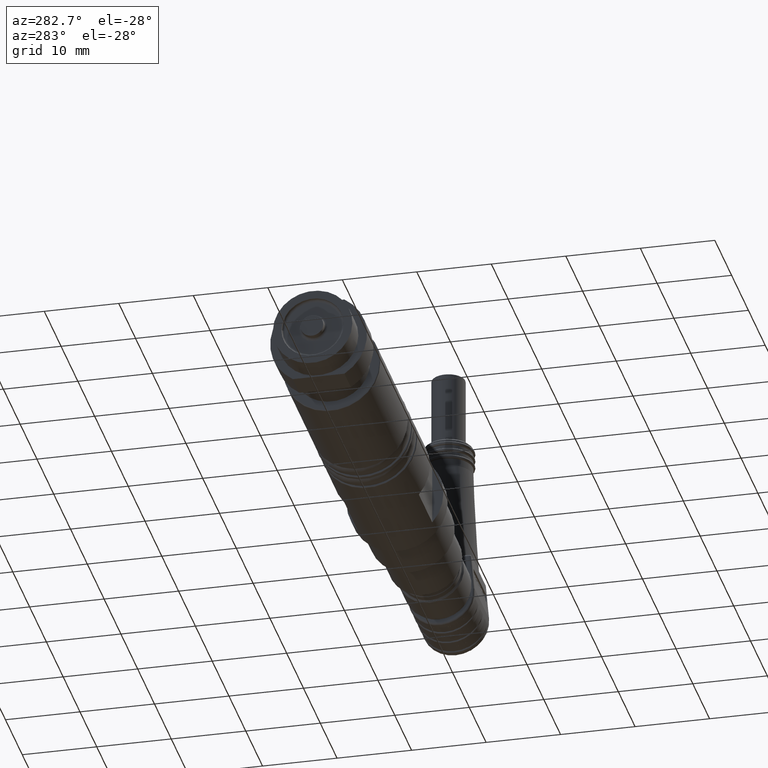
[diagram: clean part render]
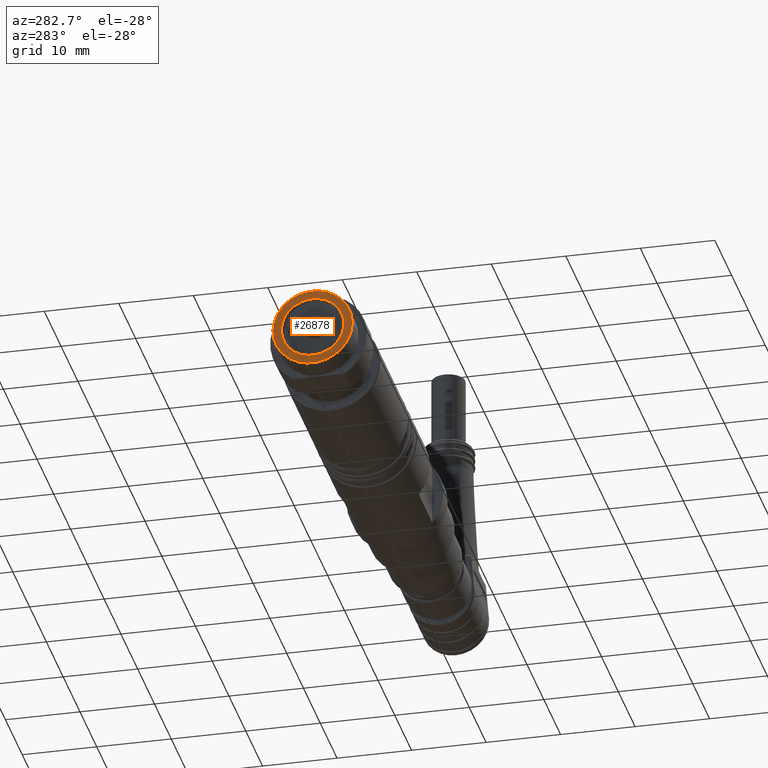
[diagram: same view with one face highlighted and labeled with its STEP entity id]
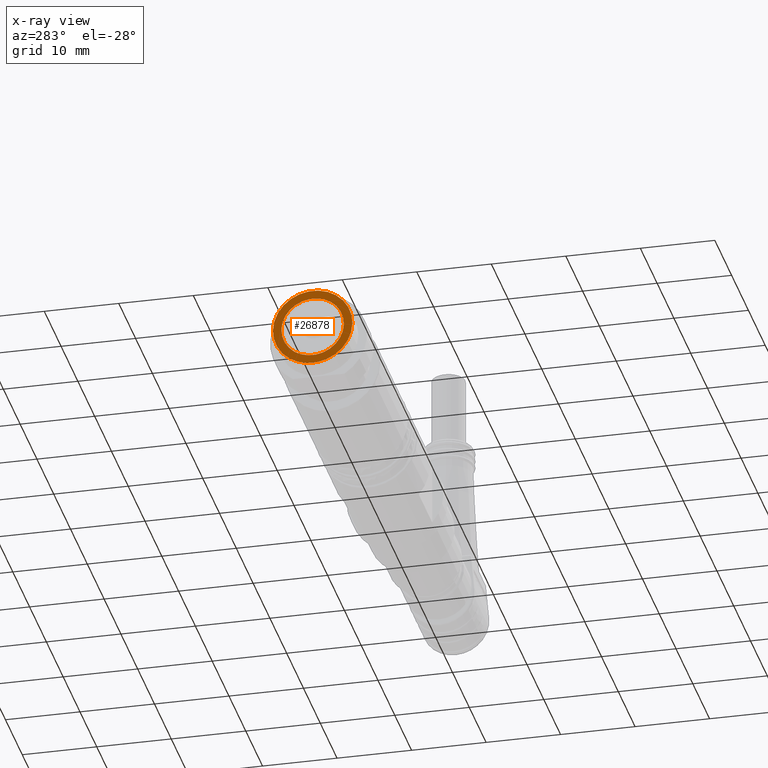
[diagram: x-ray of the same camera — body ghosted, the highlighted face saturated]
A machine part, auxiliary view. The second image highlights one B-rep face of the part: STEP entity #26878.
The next image is the same camera in x-ray: the body ghosted, the highlighted face saturated — about 0% of this face is hidden behind the body in this view.
In plain terms, the highlighted planar face has unit normal (-1, 0, 0).
Its self-contained STEP definition (entity closure, byte-faithful):
#996=PLANE('',#28531);
#1371=FACE_BOUND('',#9403,.T.);
#7902=FACE_OUTER_BOUND('',#9402,.T.);
#9402=EDGE_LOOP('',(#21801));
#9403=EDGE_LOOP('',(#21802));
#10351=CIRCLE('',#28511,0.21);
#10358=CIRCLE('',#28530,0.165);
#12356=VERTEX_POINT('',#44083);
#12363=VERTEX_POINT('',#44109);
#15668=EDGE_CURVE('',#12356,#12356,#10351,.T.);
#15675=EDGE_CURVE('',#12363,#12363,#10358,.T.);
#21801=ORIENTED_EDGE('',*,*,#15668,.F.);
#21802=ORIENTED_EDGE('',*,*,#15675,.T.);
#26878=ADVANCED_FACE('',(#7902,#1371),#996,.T.);
#28511=AXIS2_PLACEMENT_3D('',#44084,#33104,#33105);
#28530=AXIS2_PLACEMENT_3D('',#44110,#33142,#33143);
#28531=AXIS2_PLACEMENT_3D('',#44111,#33144,#33145);
#33104=DIRECTION('center_axis',(1.,-4.34142229508346E-16,-1.31081796811606E-15));
#33105=DIRECTION('ref_axis',(4.64890124831565E-16,0.999722686787847,0.0235488751682123));
#33142=DIRECTION('center_axis',(1.,-4.34142229508346E-16,-1.31081796811606E-15));
#33143=DIRECTION('ref_axis',(4.64890124831565E-16,0.999722686787847,0.0235488751682123));
#33144=DIRECTION('center_axis',(-1.,4.34142229508346E-16,1.31081796811606E-15));
#33145=DIRECTION('ref_axis',(1.26898491714655E-15,-0.0235488751682123,0.999722686787847));
#44083=CARTESIAN_POINT('',(-0.13,0.209941764225448,0.00494526378532476));
#44084=CARTESIAN_POINT('Origin',(-0.13,6.60433919427887E-17,1.83514515536248E-16));
#44109=CARTESIAN_POINT('',(-0.13,0.164954243319995,0.00388556440275521));
#44110=CARTESIAN_POINT('Origin',(-0.13,6.60433919427887E-17,1.83514515536248E-16));
#44111=CARTESIAN_POINT('Origin',(-0.13,0.209941764225448,0.00494526378532476));